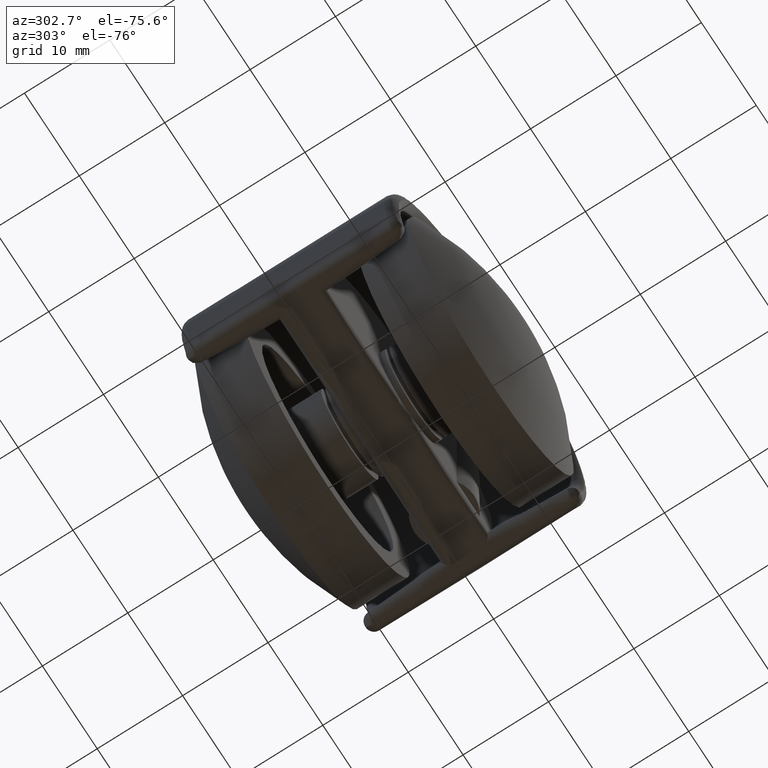
[diagram: clean part render]
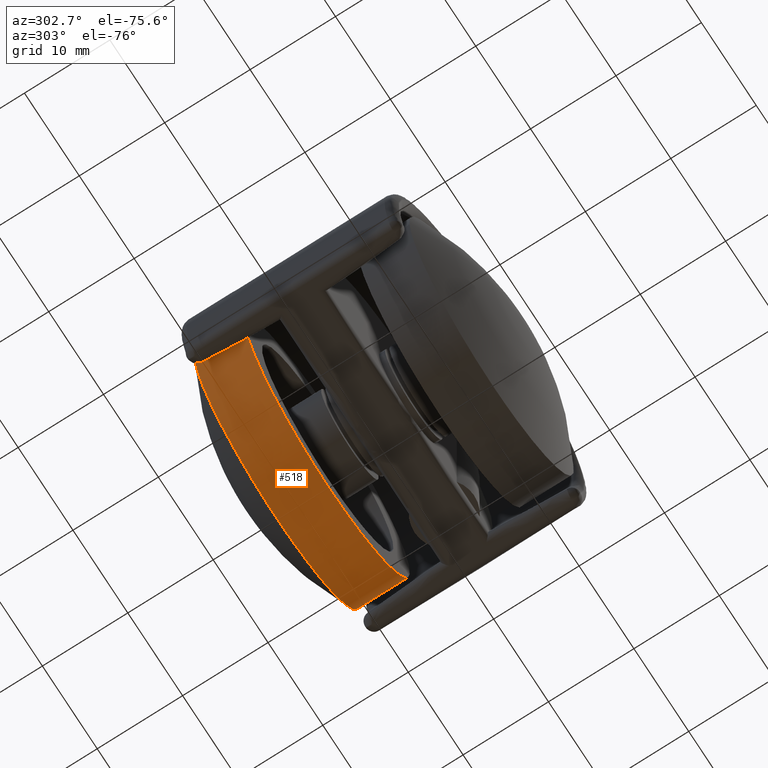
[diagram: same view with one face highlighted and labeled with its STEP entity id]
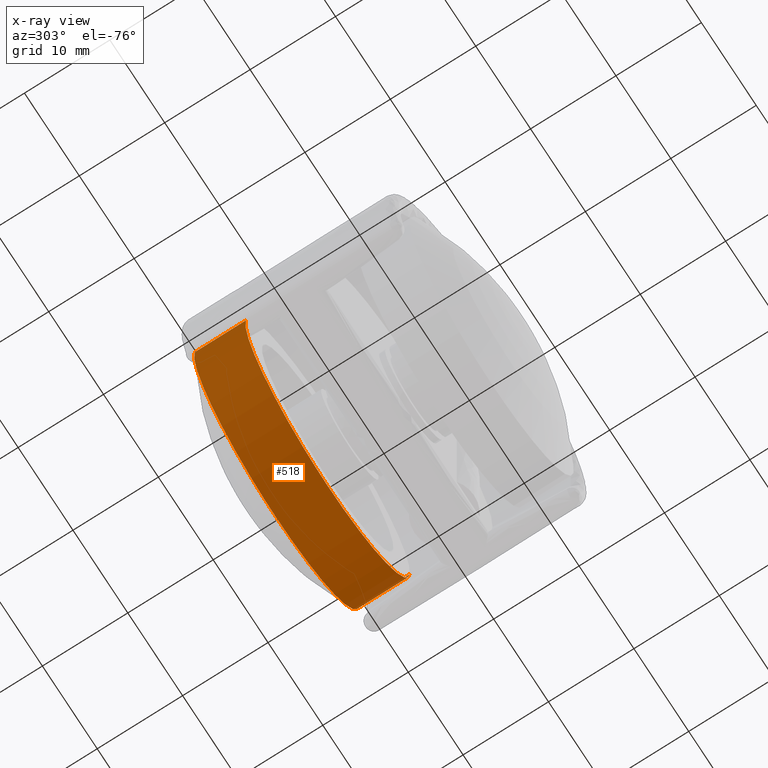
[diagram: x-ray of the same camera — body ghosted, the highlighted face saturated]
A machine part, auxiliary view. The second image highlights one B-rep face of the part: STEP entity #518.
The next image is the same camera in x-ray: the body ghosted, the highlighted face saturated — about 0% of this face is hidden behind the body in this view.
In plain terms, the highlighted face is a freeform B-spline surface patch.
Its self-contained STEP definition (entity closure, byte-faithful):
#416=CARTESIAN_POINT('',(14.895142840345544,-12.750000086315133,1.770513513300784));
#417=CARTESIAN_POINT('',(14.945814176432158,-12.750000086315126,1.344220924596281));
#418=CARTESIAN_POINT('',(14.972021920934109,-12.750000086315129,0.915728089634820));
#419=CARTESIAN_POINT('',(15.887750010568940,-12.750000086315129,-14.056293831299293));
#420=CARTESIAN_POINT('',(0.915728089634820,-12.750000086315129,-14.972021920934109));
#421=CARTESIAN_POINT('',(-14.056293831299293,-12.750000086315129,-15.887750010568940));
#422=CARTESIAN_POINT('',(-14.972021920934109,-12.750000086315129,-0.915728089634820));
#423=CARTESIAN_POINT('',(14.895142840345544,-6.446249997842122,1.770513513300784));
#424=CARTESIAN_POINT('',(14.945814176432158,-6.446249997842120,1.344220924596281));
#425=CARTESIAN_POINT('',(14.972021920934109,-6.446249997842121,0.915728089634820));
#426=CARTESIAN_POINT('',(15.887750010568940,-6.446249997842122,-14.056293831299293));
#427=CARTESIAN_POINT('',(0.915728089634820,-6.446249997842121,-14.972021920934109));
#428=CARTESIAN_POINT('',(-14.056293831299293,-6.446249997842122,-15.887750010568940));
#429=CARTESIAN_POINT('',(-14.972021920934109,-6.446249997842121,-0.915728089634820));
#437=(BOUNDED_SURFACE()B_SPLINE_SURFACE(2,1,((#416,#423),(#417,#424),(#418,#425),(#419,#426),(#420,#427),(#421,#428),(#422,#429)),.UNSPECIFIED.,.F.,.F.,.U.)B_SPLINE_SURFACE_WITH_KNOTS((3,2,2,3),(2,2),(0.0,0.994112546017385,25.846926196451982,50.699739846886573),(0.0,6.303750088473010),.UNSPECIFIED.)GEOMETRIC_REPRESENTATION_ITEM()RATIONAL_B_SPLINE_SURFACE(((0.977505800795127,0.977505800795127),(0.988284271247462,0.988284271247462),(1.0,1.0),(0.707106781186548,0.707106781186548),(1.0,1.0),(0.707106781186548,0.707106781186548),(1.0,1.0)))REPRESENTATION_ITEM('')SURFACE());
#438=CARTESIAN_POINT('',(14.895143555840679,-6.600000000000029,1.770507728987073));
#439=VERTEX_POINT('',#438);
#440=CARTESIAN_POINT('',(0.0,-6.600000000000000,-15.0));
#441=VERTEX_POINT('',#440);
#442=CARTESIAN_POINT('',(14.895143555840681,-6.600000000000029,1.770507728987072));
#443=CARTESIAN_POINT('',(14.999999999999996,-6.600000000000000,0.888358870391486));
#444=CARTESIAN_POINT('',(15.0,-6.600000000000000,0.0));
#445=CARTESIAN_POINT('',(14.999999999999996,-6.600000000000001,-14.999999999999996));
#446=CARTESIAN_POINT('',(0.0,-6.600000000000000,-15.0));
#454=(BOUNDED_CURVE()B_SPLINE_CURVE(2,(#442,#443,#444,#445,#446),.UNSPECIFIED.,.F.,.U.)B_SPLINE_CURVE_WITH_KNOTS((3,2,3),(0.229562539182780,0.250000000000000,0.500000000000000),.UNSPECIFIED.)CURVE()GEOMETRIC_REPRESENTATION_ITEM()RATIONAL_B_SPLINE_CURVE((0.956026882898200,0.976056025267483,1.0,0.707106781186547,1.0))REPRESENTATION_ITEM(''));
#455=EDGE_CURVE('',#439,#441,#454,.T.);
#456=ORIENTED_EDGE('',*,*,#455,.F.);
#457=CARTESIAN_POINT('',(14.895143492216040,-12.600000084209880,1.770507794074311));
#458=VERTEX_POINT('',#457);
#459=CARTESIAN_POINT('',(14.895143492216040,-12.600000084209880,1.770507794074311));
#460=CARTESIAN_POINT('',(14.895143555840679,-6.600000000000029,1.770507728987073));
#461=QUASI_UNIFORM_CURVE('',1,(#459,#460),.UNSPECIFIED.,.F.,.U.);
#462=EDGE_CURVE('',#458,#439,#461,.T.);
#463=ORIENTED_EDGE('',*,*,#462,.F.);
#464=CARTESIAN_POINT('',(0.0,-12.600000084209880,-14.999999889005201));
#465=VERTEX_POINT('',#464);
#466=CARTESIAN_POINT('',(14.895143492216043,-12.600000084209883,1.770507794074311));
#467=CARTESIAN_POINT('',(14.999999889005203,-12.600000084209880,0.888358900015511));
#468=CARTESIAN_POINT('',(14.999999889005201,-12.600000084209880,0.0));
#469=CARTESIAN_POINT('',(14.999999889005192,-12.600000084209881,-14.999999889005192));
#470=CARTESIAN_POINT('',(0.0,-12.600000084209880,-14.999999889005201));
#478=(BOUNDED_CURVE()B_SPLINE_CURVE(2,(#466,#467,#468,#469,#470),.UNSPECIFIED.,.F.,.U.)B_SPLINE_CURVE_WITH_KNOTS((3,2,3),(0.229562538369963,0.250000000000000,0.500000000000000),.UNSPECIFIED.)CURVE()GEOMETRIC_REPRESENTATION_ITEM()RATIONAL_B_SPLINE_CURVE((0.956026881305045,0.976056024315209,1.0,0.707106781186547,1.0))REPRESENTATION_ITEM(''));
#479=EDGE_CURVE('',#458,#465,#478,.T.);
#480=ORIENTED_EDGE('',*,*,#479,.T.);
#481=CARTESIAN_POINT('',(-14.972022513789369,-12.600000084209880,-0.915717941889287));
#482=VERTEX_POINT('',#481);
#483=CARTESIAN_POINT('',(0.0,-12.600000084209880,-14.999999889005201));
#484=CARTESIAN_POINT('',(-14.110600479331318,-12.600000084209881,-14.999999889005190));
#485=CARTESIAN_POINT('',(-14.972022513789366,-12.600000084209876,-0.915717941889287));
#493=(BOUNDED_CURVE()B_SPLINE_CURVE(2,(#483,#484,#485),.UNSPECIFIED.,.F.,.U.)B_SPLINE_CURVE_WITH_KNOTS((3,3),(0.500000000000000,0.739333079171317),.UNSPECIFIED.)CURVE()GEOMETRIC_REPRESENTATION_ITEM()RATIONAL_B_SPLINE_CURVE((1.0,0.719603856291912,0.976072292275183))REPRESENTATION_ITEM(''));
#494=EDGE_CURVE('',#465,#482,#493,.T.);
#495=ORIENTED_EDGE('',*,*,#494,.T.);
#496=CARTESIAN_POINT('',(-14.972022576949710,-6.600000000000021,-0.915717818294059));
#497=VERTEX_POINT('',#496);
#498=CARTESIAN_POINT('',(-14.972022513789369,-12.600000084209880,-0.915717941889287));
#499=CARTESIAN_POINT('',(-14.972022576949710,-6.600000000000021,-0.915717818294059));
#500=QUASI_UNIFORM_CURVE('',1,(#498,#499),.UNSPECIFIED.,.F.,.U.);
#501=EDGE_CURVE('',#482,#497,#500,.T.);
#502=ORIENTED_EDGE('',*,*,#501,.T.);
#503=CARTESIAN_POINT('',(0.0,-6.600000000000000,-15.0));
#504=CARTESIAN_POINT('',(-14.110600703645687,-6.600000000000000,-15.000000000000005));
#505=CARTESIAN_POINT('',(-14.972022576949712,-6.600000000000021,-0.915717818294059));
#513=(BOUNDED_CURVE()B_SPLINE_CURVE(2,(#503,#504,#505),.UNSPECIFIED.,.F.,.U.)B_SPLINE_CURVE_WITH_KNOTS((3,3),(0.500000000000000,0.739333080634750),.UNSPECIFIED.)CURVE()GEOMETRIC_REPRESENTATION_ITEM()RATIONAL_B_SPLINE_CURVE((1.0,0.719603854577394,0.976072295411602))REPRESENTATION_ITEM(''));
#514=EDGE_CURVE('',#441,#497,#513,.T.);
#515=ORIENTED_EDGE('',*,*,#514,.F.);
#516=EDGE_LOOP('',(#456,#463,#480,#495,#502,#515));
#517=FACE_OUTER_BOUND('',#516,.T.);
#518=ADVANCED_FACE('',(#517),#437,.T.);